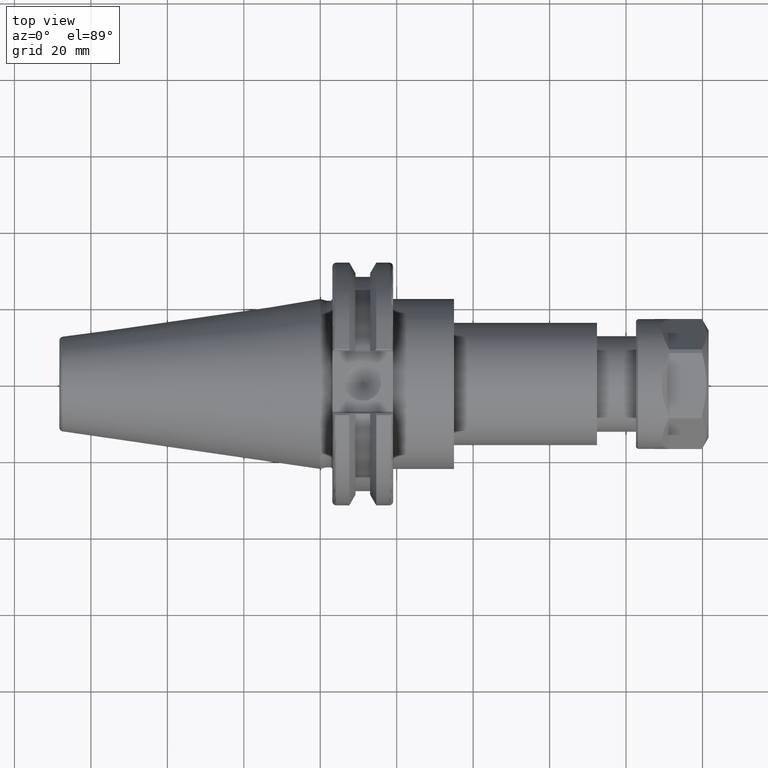
[diagram: clean part render]
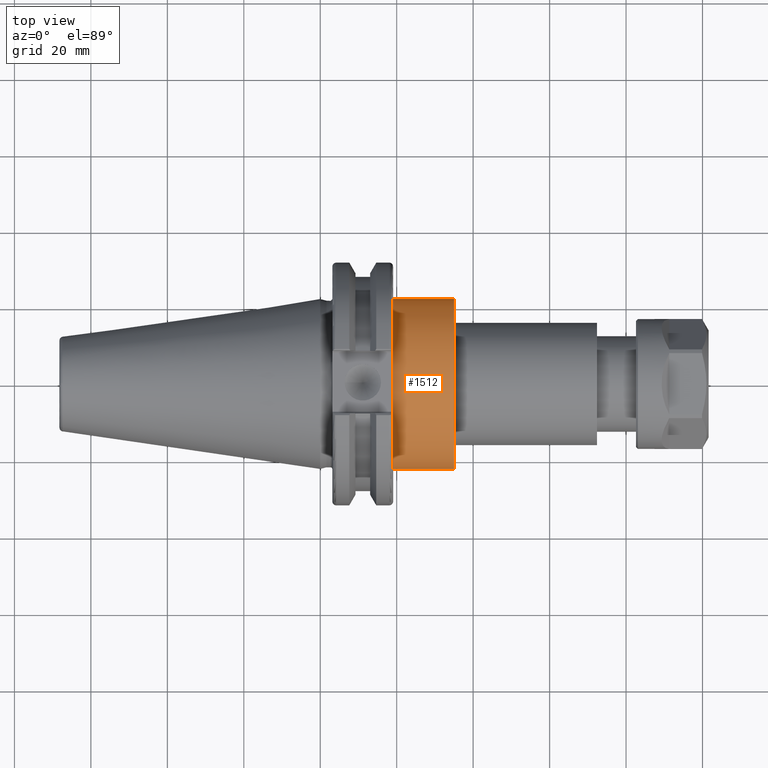
[diagram: same view with one face highlighted and labeled with its STEP entity id]
A machine part, top view. The second image highlights one B-rep face of the part: STEP entity #1512.
In plain terms, the highlighted cylindrical surface (bore or boss wall) has radius 22.225 mm, axis along (1, 0, 0).
Its self-contained STEP definition (entity closure, byte-faithful):
#199=FACE_OUTER_BOUND('',#292,.T.);
#292=EDGE_LOOP('',(#1064,#1065,#1066,#1067));
#398=LINE('',#2347,#498);
#498=VECTOR('',#1893,22.225);
#601=CIRCLE('',#1688,22.225);
#602=CIRCLE('',#1689,22.225);
#678=VERTEX_POINT('',#2344);
#679=VERTEX_POINT('',#2346);
#830=EDGE_CURVE('',#678,#678,#601,.T.);
#831=EDGE_CURVE('',#678,#679,#398,.T.);
#832=EDGE_CURVE('',#679,#679,#602,.T.);
#1064=ORIENTED_EDGE('',*,*,#830,.F.);
#1065=ORIENTED_EDGE('',*,*,#831,.T.);
#1066=ORIENTED_EDGE('',*,*,#832,.F.);
#1067=ORIENTED_EDGE('',*,*,#831,.F.);
#1487=CYLINDRICAL_SURFACE('',#1687,22.225);
#1512=ADVANCED_FACE('',(#199),#1487,.T.);
#1687=AXIS2_PLACEMENT_3D('',#2343,#1889,#1890);
#1688=AXIS2_PLACEMENT_3D('',#2345,#1891,#1892);
#1689=AXIS2_PLACEMENT_3D('',#2348,#1894,#1895);
#1889=DIRECTION('center_axis',(1.,0.,0.));
#1890=DIRECTION('ref_axis',(0.,1.,0.));
#1891=DIRECTION('center_axis',(1.,0.,0.));
#1892=DIRECTION('ref_axis',(0.,0.,-1.));
#1893=DIRECTION('',(-1.,0.,0.));
#1894=DIRECTION('center_axis',(-1.,0.,0.));
#1895=DIRECTION('ref_axis',(0.,1.,0.));
#2343=CARTESIAN_POINT('Origin',(27.025,0.,0.));
#2344=CARTESIAN_POINT('',(35.,-22.225,-2.72177751110499E-15));
#2345=CARTESIAN_POINT('Origin',(35.,0.,0.));
#2346=CARTESIAN_POINT('',(19.05,-22.225,-2.72177751110499E-15));
#2347=CARTESIAN_POINT('',(27.025,-22.225,-2.72177751110499E-15));
#2348=CARTESIAN_POINT('Origin',(19.05,0.,0.));